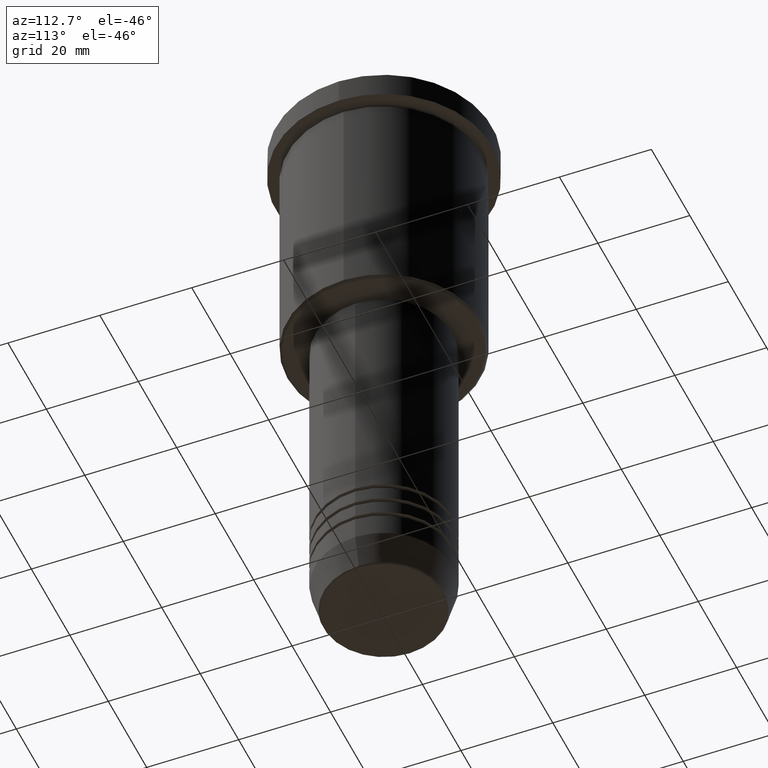
[diagram: clean part render]
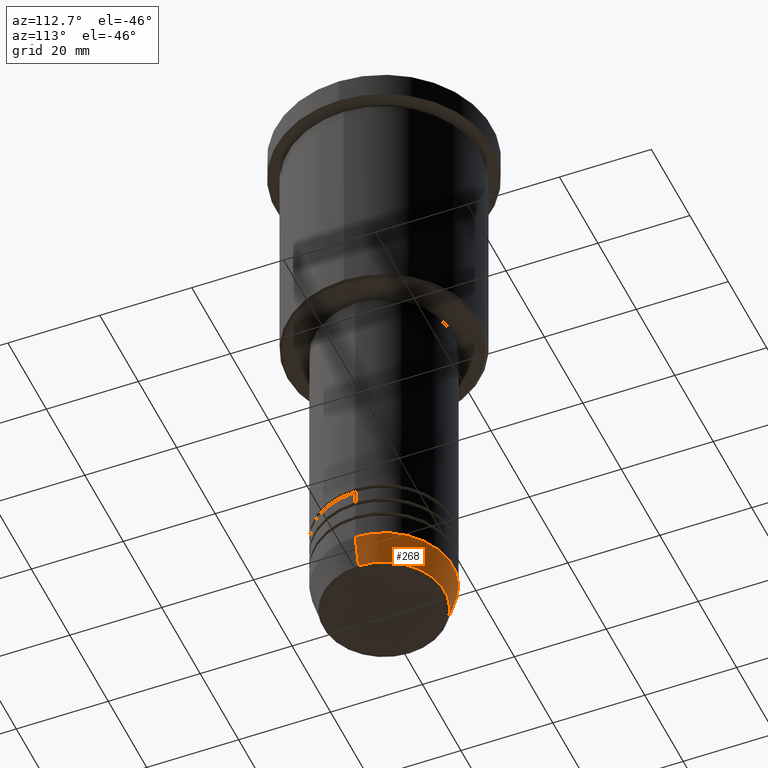
[diagram: same view with one face highlighted and labeled with its STEP entity id]
A machine part, auxiliary view. The second image highlights one B-rep face of the part: STEP entity #268.
In plain terms, the highlighted conical surface has half-angle 15 deg.
Its self-contained STEP definition (entity closure, byte-faithful):
#74 = ORIENTED_EDGE ( 'NONE', *, *, #159, .T. ) ;
#85 = CARTESIAN_POINT ( 'NONE',  ( -13.22365507213719305, 1.728200442216588386E-15, -130.6294095225512422 ) ) ;
#101 = CARTESIAN_POINT ( 'NONE',  ( 15.00000000000000000, 0.000000000000000000, -124.0000000000000000 ) ) ;
#105 = EDGE_CURVE ( 'NONE', #656, #1084, #1110, .T. ) ;
#108 = VERTEX_POINT ( 'NONE', #739 ) ;
#115 = LINE ( 'NONE', #101, #807 ) ;
#124 = DIRECTION ( 'NONE',  ( -0.000000000000000000, -0.000000000000000000, 1.000000000000000000 ) ) ;
#159 = EDGE_CURVE ( 'NONE', #240, #656, #676, .T. ) ;
#169 = ORIENTED_EDGE ( 'NONE', *, *, #269, .F. ) ;
#174 = ORIENTED_EDGE ( 'NONE', *, *, #694, .F. ) ;
#186 = CIRCLE ( 'NONE', #558, 15.00000000000000000 ) ;
#240 = VERTEX_POINT ( 'NONE', #416 ) ;
#260 = VECTOR ( 'NONE', #570, 1000.000000000000000 ) ;
#268 = ADVANCED_FACE ( 'NONE', ( #949 ), #903, .T. ) ;
#269 = EDGE_CURVE ( 'NONE', #108, #1084, #186, .T. ) ;
#416 = CARTESIAN_POINT ( 'NONE',  ( 13.22365507213719305, 0.000000000000000000, -130.6294095225512422 ) ) ;
#548 = DIRECTION ( 'NONE',  ( 0.2588190451025213501, 0.000000000000000000, 0.9659258262890680902 ) ) ;
#558 = AXIS2_PLACEMENT_3D ( 'NONE', #1133, #124, #773 ) ;
#570 = DIRECTION ( 'NONE',  ( -0.2588190451025213501, 3.169619151431772337E-17, 0.9659258262890680902 ) ) ;
#602 = DIRECTION ( 'NONE',  ( 1.000000000000000000, 0.000000000000000000, 0.000000000000000000 ) ) ;
#656 = VERTEX_POINT ( 'NONE', #85 ) ;
#669 = CARTESIAN_POINT ( 'NONE',  ( 0.000000000000000000, 0.000000000000000000, -124.0000000000000000 ) ) ;
#676 = CIRCLE ( 'NONE', #789, 13.22365507213719305 ) ;
#694 = EDGE_CURVE ( 'NONE', #240, #108, #115, .T. ) ;
#730 = CARTESIAN_POINT ( 'NONE',  ( -15.00000000000000000, 1.836970198721029589E-15, -124.0000000000000000 ) ) ;
#739 = CARTESIAN_POINT ( 'NONE',  ( 15.00000000000000000, 0.000000000000000000, -124.0000000000000000 ) ) ;
#773 = DIRECTION ( 'NONE',  ( 1.000000000000000000, 0.000000000000000000, 0.000000000000000000 ) ) ;
#789 = AXIS2_PLACEMENT_3D ( 'NONE', #915, #825, #1010 ) ;
#807 = VECTOR ( 'NONE', #548, 1000.000000000000000 ) ;
#825 = DIRECTION ( 'NONE',  ( -0.000000000000000000, -0.000000000000000000, 1.000000000000000000 ) ) ;
#893 = CARTESIAN_POINT ( 'NONE',  ( -15.00000000000000000, 1.836970198721029589E-15, -124.0000000000000000 ) ) ;
#903 = CONICAL_SURFACE ( 'NONE', #1075, 15.00000000000000000, 0.2617993877991500740 ) ;
#915 = CARTESIAN_POINT ( 'NONE',  ( 0.000000000000000000, 0.000000000000000000, -130.6294095225512422 ) ) ;
#949 = FACE_OUTER_BOUND ( 'NONE', #1004, .T. ) ;
#957 = DIRECTION ( 'NONE',  ( -0.000000000000000000, -0.000000000000000000, 1.000000000000000000 ) ) ;
#1004 = EDGE_LOOP ( 'NONE', ( #74, #1137, #169, #174 ) ) ;
#1010 = DIRECTION ( 'NONE',  ( 1.000000000000000000, 0.000000000000000000, 0.000000000000000000 ) ) ;
#1075 = AXIS2_PLACEMENT_3D ( 'NONE', #669, #957, #602 ) ;
#1084 = VERTEX_POINT ( 'NONE', #893 ) ;
#1110 = LINE ( 'NONE', #730, #260 ) ;
#1133 = CARTESIAN_POINT ( 'NONE',  ( 0.000000000000000000, 0.000000000000000000, -124.0000000000000000 ) ) ;
#1137 = ORIENTED_EDGE ( 'NONE', *, *, #105, .T. ) ;